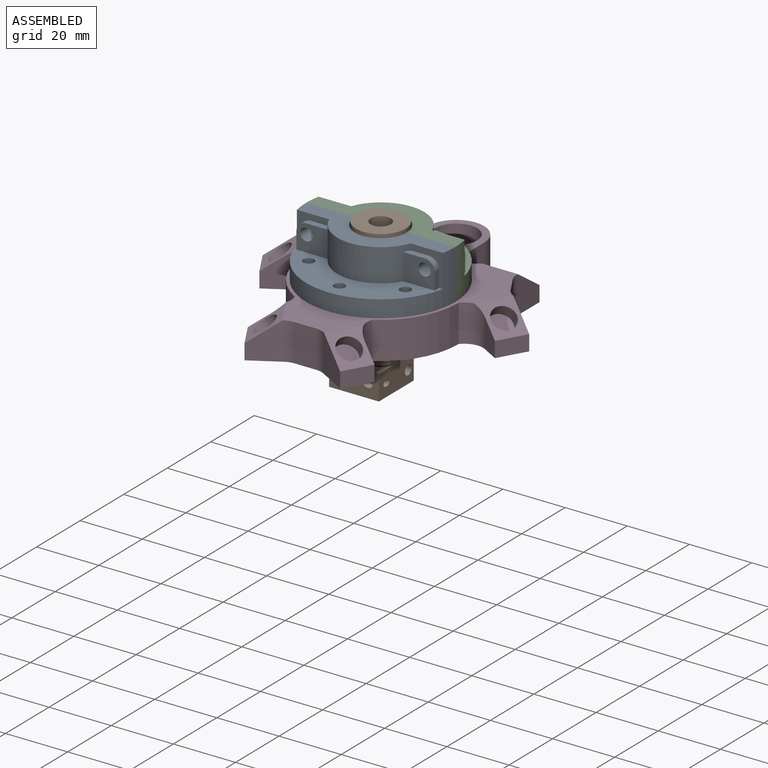
[diagram: assembled view]
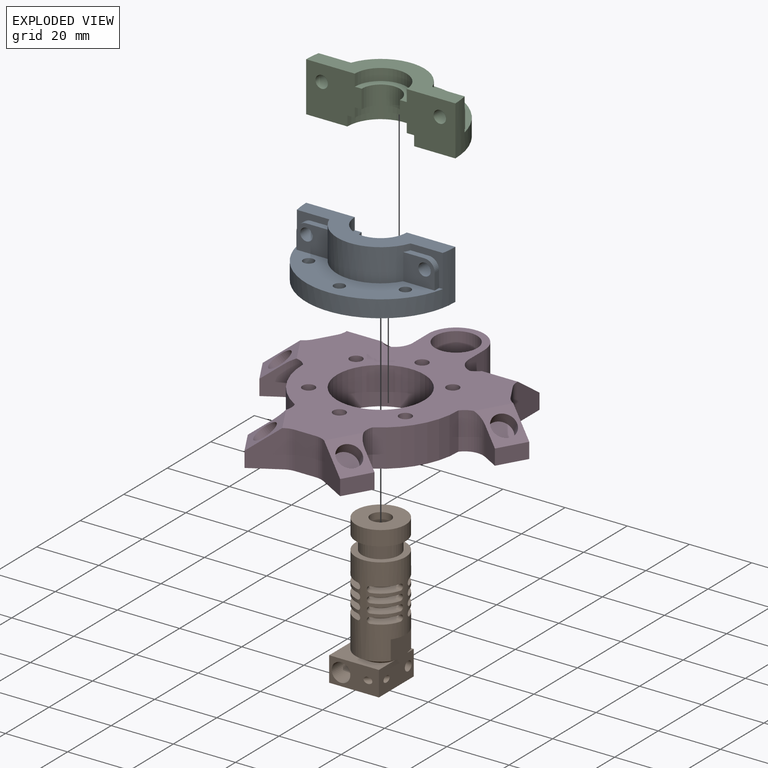
[diagram: exploded view]
GUIDED TOUR — MATED ASSEMBLY WITH SUBASSEMBLIES (Onshape document 575c5147e4b053149a4227c5, AutoMate assembly 575c5147e4b053149a4227c5_d70a87a9a5a8ee45e7b6e4a1_b2212cde1430702af11edaee_default)

This assembly has 5 component occurrences arranged in 4 top-level units: 3 individual components plus 1 subassembly (S0). The tour has two levels: first the top level, where each subassembly is treated as one rigid unit; then each subassembly is toured internally in its own section (nesting deeper than one subassembly level is flattened into its subassembly's section).

Components are labeled P0..P4 across the whole record; subassembly units are labeled S0..S0. A mate is a constraint between two units; its type names the relative motion it leaves free:
  FASTENED — locks the two components together rigidly (no relative motion).
Axis/direction vectors are unit vectors and 'through' points are millimeter coordinates, both in the assembly's world frame.

TOP-LEVEL MATES (between units; each subassembly's internal mates are listed in its own section)
  1. FASTENED "Fastened 1": P3 <-> P4, direction (0.000, 0.000, -1.000) through (-11.90, 14.18, 9.08) mm
  2. FASTENED "Fastened 4": S0 <-> P0, direction (0.000, 0.000, -1.000) through (-11.90, -4.82, 21.28) mm
  3. FASTENED "Fastened 2": P0 <-> P4, direction (0.000, 0.000, -1.000) through (-11.90, -23.82, 9.08) mm

TOP-LEVEL ASSEMBLY ORDER
  1. P0 — the base component [order heuristic]
  2. P3 — core [order heuristic]
  3. P4 [order verified]
  4. S0 — core [order heuristic]
Order-tag legend:
  [order verified] — this step's position reverses a verified removal order: the component was checked to insert without passing through the ones already placed.
  [order heuristic] — the first 3 components form the assembly's core: parts whose collision-free extraction could not be verified, listed in mate-graph order.

Of the 5 component occurrences, 1 carries the full construction recipe — the FeatureScript program that regenerates the part's solid from scratch; the rest are supplied as boundary geometry only. Each toured unit is shown spotlighted twice — assembled, then exploded with a leader line back to its socket (green = recipe-attached component, orange = geometry-only, blue = subassembly unit; the rest desaturated gray).
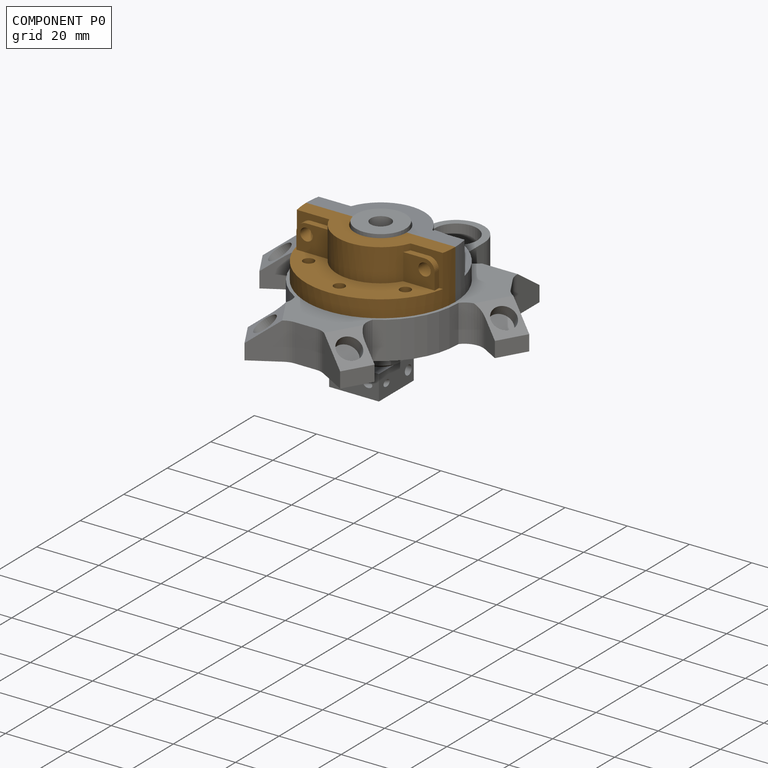
[diagram: component P0 — assembled]
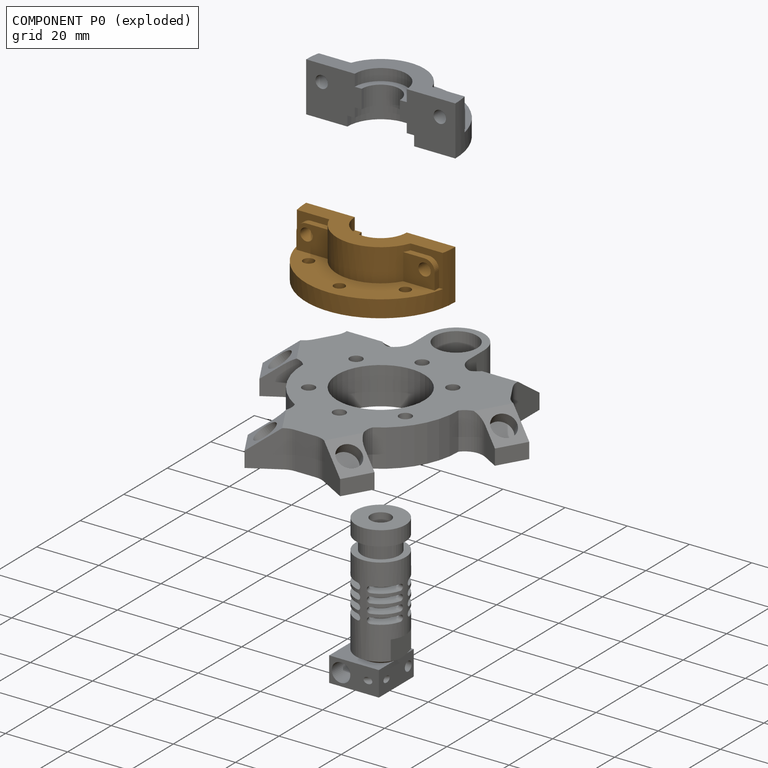
[diagram: component P0 — exploded]
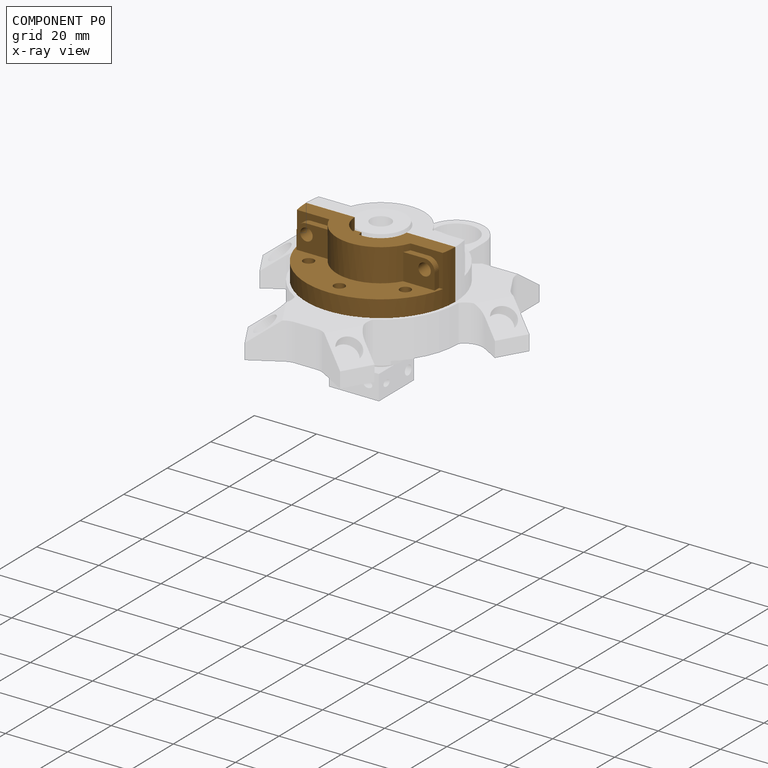
[diagram: component P0 — x-ray view]
COMPONENT P0 — geometry summary (no construction recipe available for this part):
  bounding box: 48.0 x 24.0 x 16.0 mm
  B-rep topology: 1 solid, 29 faces, 168 edges
  volume: 7576 mm^3 (41% of its bounding box)
  symmetry: mirror-symmetric across its x mid-plane
Held by: FASTENED mate "Fastened 4" to P1; FASTENED mate "Fastened 2" to P4.
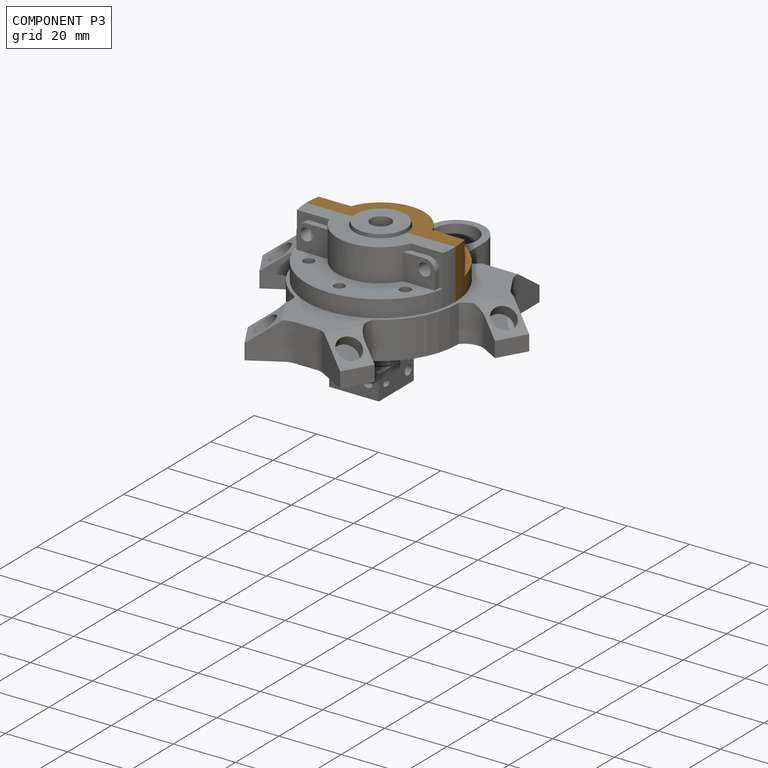
[diagram: component P3 — assembled]
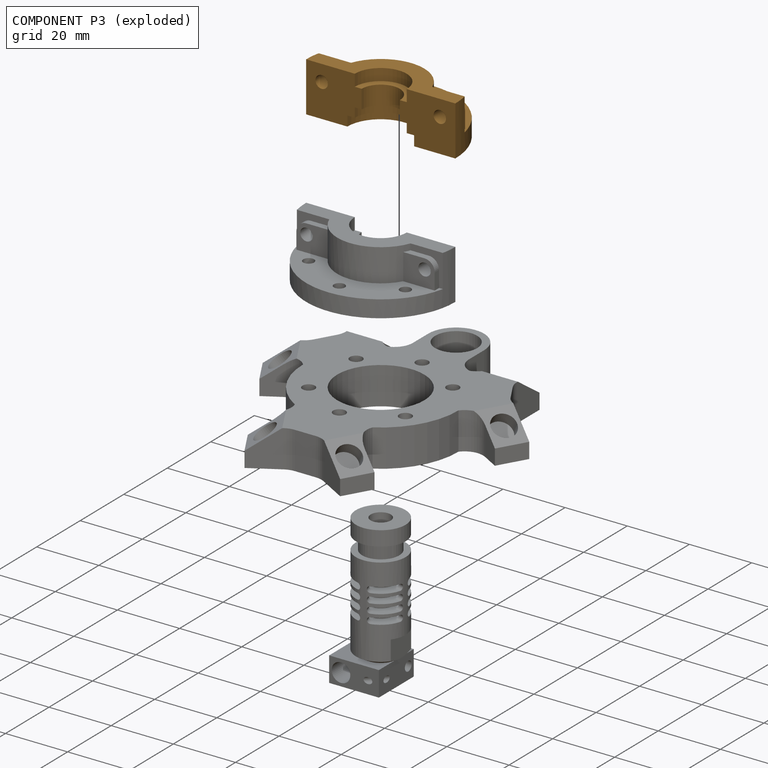
[diagram: component P3 — exploded]
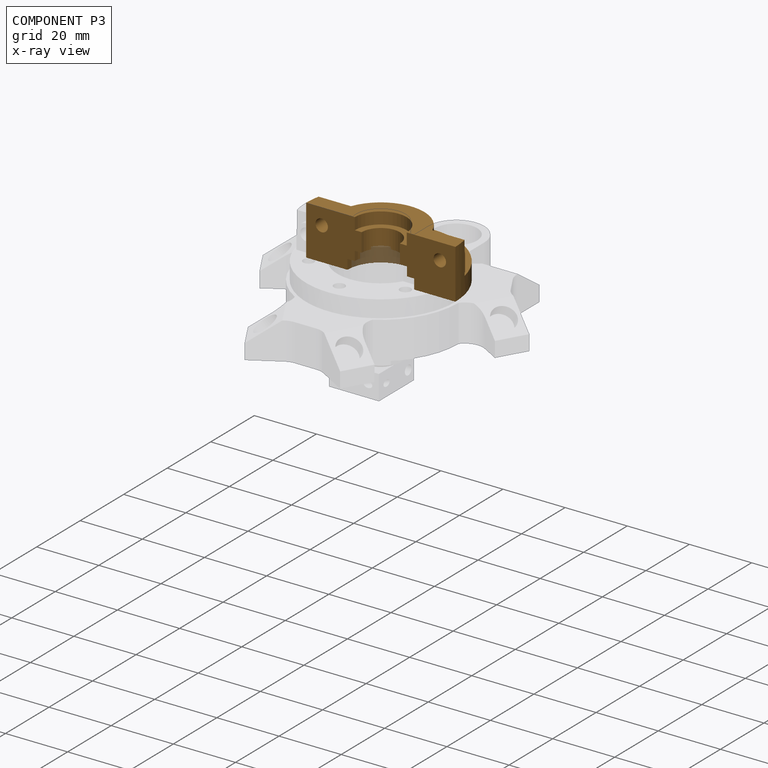
[diagram: component P3 — x-ray view]
COMPONENT P3 — geometry summary (no construction recipe available for this part):
  bounding box: 48.0 x 24.0 x 16.0 mm
  B-rep topology: 1 solid, 29 faces, 168 edges
  volume: 7576 mm^3 (41% of its bounding box)
  symmetry: mirror-symmetric across its x mid-plane
Held by: FASTENED mate "Fastened 1" to P4.
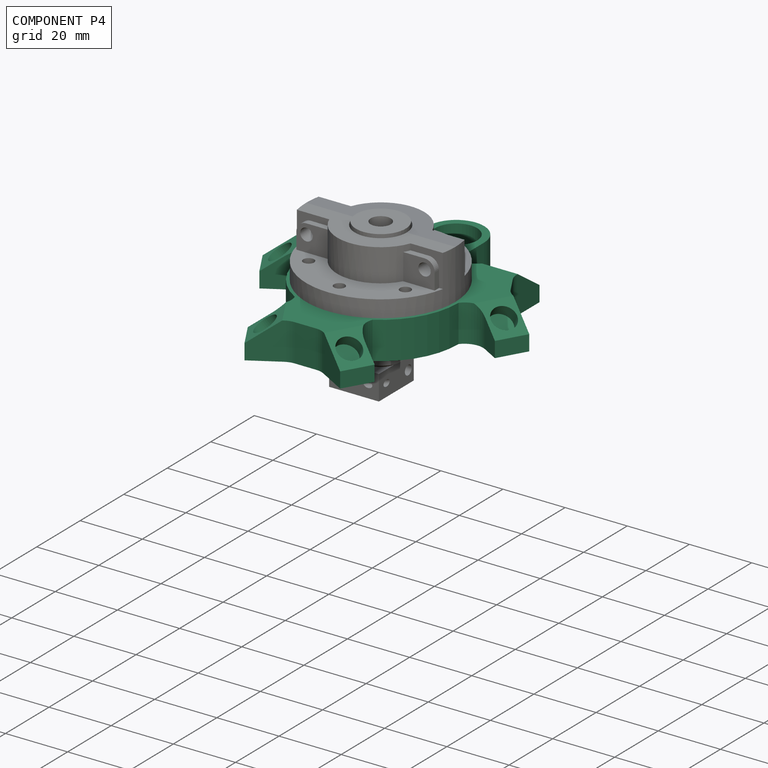
[diagram: component P4 — assembled]
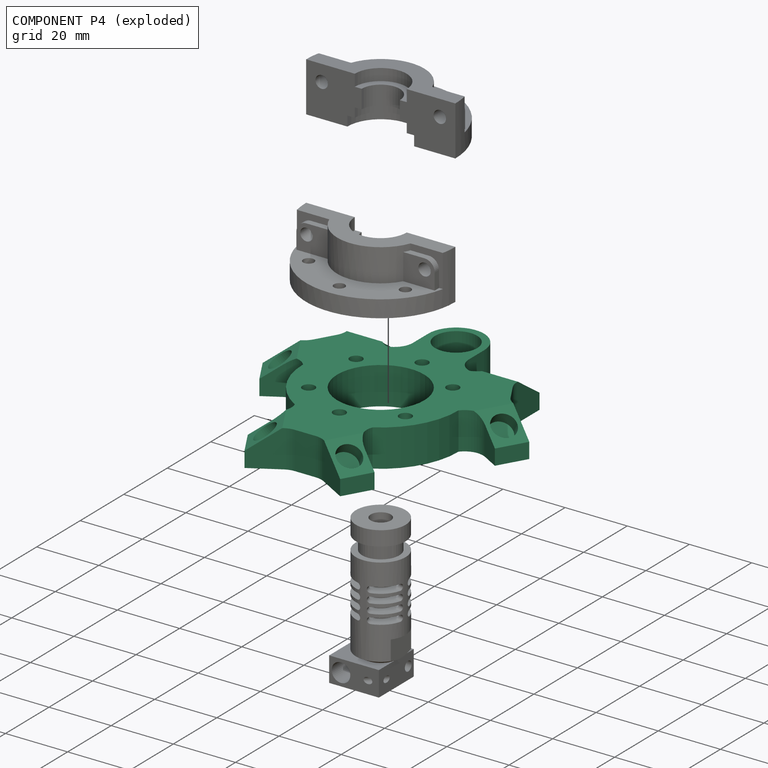
[diagram: component P4 — exploded]
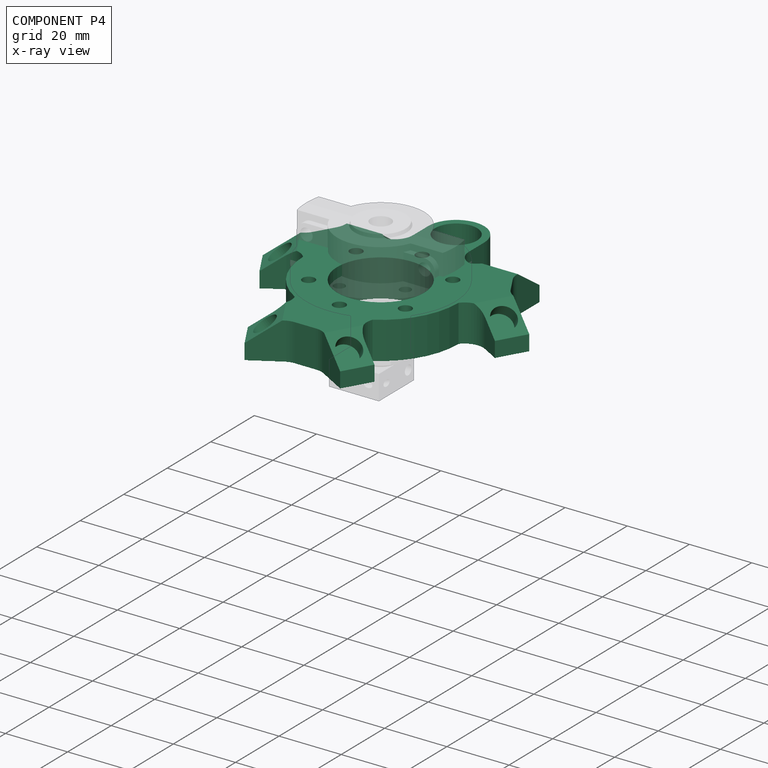
[diagram: component P4 — x-ray view]
COMPONENT P4 — recipe-attached (CADFS 00173867, mesh-verified: the recipe's output STEP matches this component's geometry to below the mesh-comparison resolution (tessellation chordal tolerance ~0.181 mm)).
Held by: FASTENED mate "Fastened 1" to P3; FASTENED mate "Fastened 2" to P0.
Construction recipe (FeatureScript — the CAD program that rebuilds this solid; sketch coordinates are in the units given by the * unit suffixes, e.g. mm):

FeatureScript 1511;
import(path : "onshape/std/geometry.fs", version : "1511.0");
import(path : "onshape/std/common.fs", version : "1511.0");
const mm = millimeter;
const VERTEX = EntityType.VERTEX;
const EDGE = EntityType.EDGE;
const FACE = EntityType.FACE;
const BODY = EntityType.BODY;
function v(x, y){return vector(x, y);}
function OD(order){return orderDisambiguation(order);}
function OSD(set){return originalSetDisambiguation(set);}
function TD(topology){return topologyDisambiguation(topology);}
function TDD(query){return trueDependencyDisambiguation(query);}
function sQuery(a, b, c) {return sketchEntityQuery(a, b, c);}

annotation { "Feature Type Name" : "Feature", "Feature Type Description" : "" }
export const myFeature = defineFeature(function(context is Context, id is Id, definition is map)
    precondition{}
    {
        {
            var Q0;
            Q0=qCreatedBy(makeId("Top.planeOp"),FACE);
            var sketch = newSketch(context, id + "F0", { "sketchPlane" : qUnion([Q0])});
            skCircle(sketch, "E0.cCircle", {"center": v(0, 0) * mm, "radius": 21.65 * mm, "construction": true});
            skLineSegment(sketch, "E0.0", {"start": v(-37.5, 21.65) * mm, "end": v(37.5, 21.65) * mm});
            skLineSegment(sketch, "E0.1", {"start": v(37.5, 21.65) * mm, "end": v(0, -43.3) * mm});
            skLineSegment(sketch, "E0.2", {"start": v(0, -43.3) * mm, "end": v(-37.5, 21.65) * mm});
            skPoint(sketch, "E0.0.midPoint", {"position": v(0, 21.65) * mm});
            skLineSegment(sketch, "E1", {"start": v(-5, -34.64) * mm, "end": v(5, -34.64) * mm});
            skLineSegment(sketch, "E2", {"start": v(27.5, 21.65) * mm, "end": v(32.5, 13) * mm});
            skLineSegment(sketch, "E3", {"start": v(-17.5, 33.65) * mm, "end": v(-17.5, 21.65) * mm});
            skLineSegment(sketch, "E4", {"start": v(17.5, 21.65) * mm, "end": v(17.5, 33.65) * mm});
            skLineSegment(sketch, "E5", {"start": v(27.5, 33.65) * mm, "end": v(27.5, 21.65) * mm});
            skLineSegment(sketch, "E6", {"start": v(-27.5, 21.65) * mm, "end": v(-27.5, 33.65) * mm});
            skLineSegment(sketch, "E7.MirrorCS", {"start": v(32.5, 13) * mm, "end": v(42.9, 7) * mm});
            skLineSegment(sketch, "E8.MirrorCS", {"start": v(37.9, -1.67) * mm, "end": v(27.5, 4.33) * mm});
            skLineSegment(sketch, "E9.MirrorCS", {"start": v(10, -25.98) * mm, "end": v(20.4, -31.98) * mm});
            skLineSegment(sketch, "E10.MirrorCS", {"start": v(15.4, -40.64) * mm, "end": v(5, -34.64) * mm});
            skLineSegment(sketch, "E11", {"start": v(-42.9, 7) * mm, "end": v(-32.5, 13) * mm});
            skLineSegment(sketch, "E12", {"start": v(-37.9, -1.67) * mm, "end": v(-27.5, 4.33) * mm});
            skLineSegment(sketch, "E13", {"start": v(-20.4, -31.98) * mm, "end": v(-10, -25.98) * mm});
            skLineSegment(sketch, "E14", {"start": v(-15.4, -40.64) * mm, "end": v(-5, -34.64) * mm});
            skCircle(sketch, "E15", {"center": v(0, 0) * mm, "radius": 14 * mm});
            skLineSegment(sketch, "E16", {"start": v(0, 21.65) * mm, "end": v(0, 34.65) * mm});
            skCircle(sketch, "E17", {"center": v(0, 34.65) * mm, "radius": 6.75 * mm});
            skArc(sketch, "E18", {"start": v(9, 34.65) * mm, "mid": v(0, 43.65) * mm, "end": v(-9, 34.65) * mm});
            skLineSegment(sketch, "E19", {"start": v(-9, 34.65) * mm, "end": v(-9, 21.65) * mm});
            skLineSegment(sketch, "E20", {"start": v(9, 34.65) * mm, "end": v(9, 21.65) * mm});
            skLineSegment(sketch, "E21", {"start": v(-32.5, 13) * mm, "end": v(-27.5, 21.65) * mm});
            skArc(sketch, "E22", {"start": v(-25, 0) * mm, "mid": v(-21.65, -12.5) * mm, "end": v(-12.5, -21.65) * mm});
            skArc(sketch, "E23.trimOffspring", {"start": v(12.5, -21.65) * mm, "mid": v(21.65, -12.5) * mm, "end": v(25, 0) * mm});
            skLineSegment(sketch, "E24", {"start": v(-37.9, -1.67) * mm, "end": v(-42.9, 7) * mm});
            skLineSegment(sketch, "E25", {"start": v(-27.5, 33.65) * mm, "end": v(-17.5, 33.65) * mm});
            skLineSegment(sketch, "E26", {"start": v(17.5, 33.65) * mm, "end": v(27.5, 33.65) * mm});
            skLineSegment(sketch, "E27", {"start": v(42.9, 7) * mm, "end": v(37.9, -1.67) * mm});
            skLineSegment(sketch, "E28", {"start": v(20.4, -31.98) * mm, "end": v(15.4, -40.64) * mm});
            skLineSegment(sketch, "E29", {"start": v(-15.4, -40.64) * mm, "end": v(-20.4, -31.98) * mm});
            skSolve(sketch);
        }
        {
            var Q0;
            {var subQ0=sQuery(id+"F0.wireOp",EDGE,"E3");Q0=makeQuery(id+"F0.imprint","IMPRINT",FACE,{"disambiguationData":[TD([[makeQuery(id+"F0.imprint","IMPRINT",EDGE,{"derivedFrom":subQ0}),-1.0]])]});}
            var Q1;
            Q1=makeQuery(id+"F0.imprint","IMPRINT",FACE,{"disambiguationData":[TD([[makeQuery(id+"F0.imprint","IMPRINT",EDGE,{"derivedFrom":sQuery(id+"F0.wireOp",EDGE,"E17")}),-1.0]])]});
            var Q2;
            {var subQ2=sQuery(id+"F0.wireOp",EDGE,"E4");Q2=makeQuery(id+"F0.imprint","IMPRINT",FACE,{"disambiguationData":[TD([[makeQuery(id+"F0.imprint","IMPRINT",EDGE,{"derivedFrom":subQ2}),-1.0]])]});}
            var Q3;
            {var subQ19=sQuery(id+"F0.wireOp",EDGE,"E1");Q3=makeQuery(id+"F0.imprint","IMPRINT",FACE,{"disambiguationData":[TD([[makeQuery(id+"F0.imprint","IMPRINT",EDGE,{"derivedFrom":subQ19}),1.0]])]});}
            var Q4;
            {var subQ0=sQuery(id+"F0.wireOp",EDGE,"E7.MirrorCS");Q4=makeQuery(id+"F0.imprint","IMPRINT",FACE,{"disambiguationData":[TD([[makeQuery(id+"F0.imprint","IMPRINT",EDGE,{"derivedFrom":subQ0}),-1.0]])]});}
            var Q5;
            {var subQ2=sQuery(id+"F0.wireOp",EDGE,"E9.MirrorCS");Q5=makeQuery(id+"F0.imprint","IMPRINT",FACE,{"disambiguationData":[TD([[makeQuery(id+"F0.imprint","IMPRINT",EDGE,{"derivedFrom":subQ2}),-1.0]])]});}
            var Q6;
            {var subQ0=sQuery(id+"F0.wireOp",EDGE,"E11");Q6=makeQuery(id+"F0.imprint","IMPRINT",FACE,{"disambiguationData":[TD([[makeQuery(id+"F0.imprint","IMPRINT",EDGE,{"derivedFrom":subQ0}),-1.0]])]});}
            var Q7;
            {var subQ0=sQuery(id+"F0.wireOp",EDGE,"E22");Q7=makeQuery(id+"F0.imprint","IMPRINT",FACE,{"disambiguationData":[TD([[makeQuery(id+"F0.imprint","IMPRINT",EDGE,{"derivedFrom":subQ0}),1.0]])]});}
            var Q8;
            {var subQ0=sQuery(id+"F0.wireOp",EDGE,"E23.trimOffspring");Q8=makeQuery(id+"F0.imprint","IMPRINT",FACE,{"disambiguationData":[TD([[makeQuery(id+"F0.imprint","IMPRINT",EDGE,{"derivedFrom":subQ0}),1.0]])]});}
            var Q9;
            {var subQ2=sQuery(id+"F0.wireOp",EDGE,"E13");Q9=makeQuery(id+"F0.imprint","IMPRINT",FACE,{"disambiguationData":[TD([[makeQuery(id+"F0.imprint","IMPRINT",EDGE,{"derivedFrom":subQ2}),-1.0]])]});}
            extrude(context, id + "F1", {"entities" : qUnion([Q0, Q1, Q2, Q3, Q4, Q5, Q6, Q7, Q8, Q9]), "depth" : 12 * mm});
        }
        {
            var Q0;
            Q0=makeQuery(id+"F1.opExtrude","CAP_EDGE",EDGE,{"disambiguationData":[OSD([sQuery(id+"F0.wireOp",EDGE,"E29")])],"isStart":false});
            var Q1;
            Q1=makeQuery(id+"F1.opExtrude","CAP_EDGE",EDGE,{"disambiguationData":[OSD([sQuery(id+"F0.wireOp",EDGE,"E24")])],"isStart":false});
            var Q2;
            Q2=makeQuery(id+"F1.opExtrude","CAP_EDGE",EDGE,{"disambiguationData":[OSD([sQuery(id+"F0.wireOp",EDGE,"E25")])],"isStart":false});
            var Q3;
            Q3=makeQuery(id+"F1.opExtrude","CAP_EDGE",EDGE,{"disambiguationData":[OSD([sQuery(id+"F0.wireOp",EDGE,"E26")])],"isStart":false});
            var Q4;
            Q4=makeQuery(id+"F1.opExtrude","CAP_EDGE",EDGE,{"disambiguationData":[OSD([sQuery(id+"F0.wireOp",EDGE,"E27")])],"isStart":false});
            var Q5;
            Q5=makeQuery(id+"F1.opExtrude","CAP_EDGE",EDGE,{"disambiguationData":[OSD([sQuery(id+"F0.wireOp",EDGE,"E28")])],"isStart":false});
            chamfer(context, id + "F2", {"entities" : qUnion([Q0, Q1, Q2, Q3, Q4, Q5]), "chamferType" : ChamferType.TWO_OFFSETS, "width1" : 7 * mm, "oppositeDirection" : false, "width2" : 10 * mm, "tangentPropagation" : true});
        }
        {
            var Q0;
            Q0=makeQuery(id+"F2.opChamfer","BLEND_FACE",FACE,{"disambiguationData":[OSD([sQuery(id+"F0.wireOp",EDGE,"E24")])]});
            var sketch = newSketch(context, id + "F3", { "sketchPlane" : qUnion([Q0])});
            skLineSegment(sketch, "E30", {"start": v(-31.04, 11.77) * mm, "end": v(-27.27, 6.41) * mm, "construction": true});
            skLineSegment(sketch, "E31", {"start": v(-33.15, 4.16) * mm, "end": v(-26.05, 9.16) * mm, "construction": true});
            skCircle(sketch, "E32", {"center": v(-28.16, 7.68) * mm, "radius": 3.8 * mm});
            skCircle(sketch, "E33", {"center": v(-2.24, -29.1) * mm, "radius": 3.8 * mm});
            skLineSegment(sketch, "E34", {"start": v(-28.16, 7.68) * mm, "end": v(-2.24, -29.1) * mm, "construction": true});
            skSolve(sketch);
        }
        {
            var Q0;
            Q0=makeQuery(id+"F3.imprint","IMPRINT",FACE,{"disambiguationData":[TD([[makeQuery(id+"F3.imprint","IMPRINT",EDGE,{"derivedFrom":sQuery(id+"F3.wireOp",EDGE,"E32")}),1.0]])]});
            var Q1;
            Q1=makeQuery(id+"F3.imprint","IMPRINT",FACE,{"disambiguationData":[TD([[makeQuery(id+"F3.imprint","IMPRINT",EDGE,{"derivedFrom":sQuery(id+"F3.wireOp",EDGE,"E33")}),1.0]])]});
            extrude(context, id + "F4", {"entities" : qUnion([Q0, Q1]), "operationType" : NewBodyOperationType.REMOVE, "oppositeDirection" : true, "depth" : 4 * mm});
        }
        {
            var Q0;
            Q0=makeQuery(id+"F2.opChamfer","BLEND_FACE",FACE,{"disambiguationData":[OSD([sQuery(id+"F0.wireOp",EDGE,"E26")])]});
            var sketch = newSketch(context, id + "F5", { "sketchPlane" : qUnion([Q0])});
            skLineSegment(sketch, "E35", {"start": v(27.5, 18.6) * mm, "end": v(22.5, 18.6) * mm});
            skLineSegment(sketch, "E36", {"start": v(22.5, 18.6) * mm, "end": v(-22.5, 18.6) * mm});
            skCircle(sketch, "E37", {"center": v(22.5, 18.6) * mm, "radius": 3.8 * mm});
            skCircle(sketch, "E38", {"center": v(-22.5, 18.6) * mm, "radius": 3.8 * mm});
            skSolve(sketch);
        }
        {
            var Q0;
            {var subQ0=sQuery(id+"F5.wireOp",EDGE,"E36");var subQ1=sQuery(id+"F5.wireOp",EDGE,"E35");var subQ2=makeQuery(id+"F5.imprint","INTERSECT",VERTEX,{"derivedFrom":[subQ1,subQ0]});Q0=makeQuery(id+"F5.imprint","IMPRINT",FACE,{"disambiguationData":[TD([[makeQuery(id+"F5.imprint","IMPRINT",EDGE,{"disambiguationData":[TD([[subQ2,1.0]])],"derivedFrom":subQ1}),1.0]])]});}
            var Q1;
            {var subQ0=sQuery(id+"F5.wireOp",EDGE,"E36");var subQ1=sQuery(id+"F5.wireOp",EDGE,"E35");var subQ2=makeQuery(id+"F5.imprint","INTERSECT",VERTEX,{"derivedFrom":[subQ1,subQ0]});Q1=makeQuery(id+"F5.imprint","IMPRINT",FACE,{"disambiguationData":[TD([[makeQuery(id+"F5.imprint","IMPRINT",EDGE,{"disambiguationData":[TD([[subQ2,1.0]])],"derivedFrom":subQ1}),-1.0]])]});}
            var Q2;
            Q2=makeQuery(id+"F5.imprint","IMPRINT",FACE,{"disambiguationData":[TD([[makeQuery(id+"F5.imprint","IMPRINT",EDGE,{"derivedFrom":sQuery(id+"F5.wireOp",EDGE,"E38")}),1.0]])]});
            extrude(context, id + "F6", {"entities" : qUnion([Q0, Q1, Q2]), "operationType" : NewBodyOperationType.REMOVE, "oppositeDirection" : true, "depth" : 4 * mm});
        }
        {
            var Q0;
            Q0=makeQuery(id+"F2.opChamfer","BLEND_FACE",FACE,{"disambiguationData":[OSD([sQuery(id+"F0.wireOp",EDGE,"E28")])]});
            var sketch = newSketch(context, id + "F7", { "sketchPlane" : qUnion([Q0])});
            skLineSegment(sketch, "E39", {"start": v(-0.64, -33.2) * mm, "end": v(2.24, -29.1) * mm});
            skLineSegment(sketch, "E40", {"start": v(2.24, -29.1) * mm, "end": v(28.16, 7.68) * mm});
            skCircle(sketch, "E41", {"center": v(2.24, -29.1) * mm, "radius": 3.8 * mm});
            skCircle(sketch, "E42", {"center": v(28.16, 7.68) * mm, "radius": 3.8 * mm});
            skSolve(sketch);
        }
        {
            var Q0;
            {var subQ0=sQuery(id+"F7.wireOp",EDGE,"E40");var subQ1=sQuery(id+"F7.wireOp",EDGE,"E39");var subQ2=makeQuery(id+"F7.imprint","INTERSECT",VERTEX,{"derivedFrom":[subQ1,subQ0]});Q0=makeQuery(id+"F7.imprint","IMPRINT",FACE,{"disambiguationData":[TD([[makeQuery(id+"F7.imprint","IMPRINT",EDGE,{"disambiguationData":[TD([[subQ2,1.0]])],"derivedFrom":subQ1}),-1.0]])]});}
            var Q1;
            {var subQ0=sQuery(id+"F7.wireOp",EDGE,"E40");var subQ1=sQuery(id+"F7.wireOp",EDGE,"E39");var subQ2=makeQuery(id+"F7.imprint","INTERSECT",VERTEX,{"derivedFrom":[subQ1,subQ0]});Q1=makeQuery(id+"F7.imprint","IMPRINT",FACE,{"disambiguationData":[TD([[makeQuery(id+"F7.imprint","IMPRINT",EDGE,{"disambiguationData":[TD([[subQ2,1.0]])],"derivedFrom":subQ1}),1.0]])]});}
            var Q2;
            Q2=makeQuery(id+"F7.imprint","IMPRINT",FACE,{"disambiguationData":[TD([[makeQuery(id+"F7.imprint","IMPRINT",EDGE,{"derivedFrom":sQuery(id+"F7.wireOp",EDGE,"E42")}),1.0]])]});
            extrude(context, id + "F8", {"entities" : qUnion([Q0, Q1, Q2]), "operationType" : NewBodyOperationType.REMOVE, "oppositeDirection" : true, "depth" : 4 * mm});
        }
        {
            var Q0;
            Q0=makeQuery(id+"F1.opExtrude","CAP_FACE",FACE,{"disambiguationData":[OSD([sQuery(id+"F0.wireOp",EDGE,"E0.0"),sQuery(id+"F0.wireOp",EDGE,"E0.1"),sQuery(id+"F0.wireOp",EDGE,"E0.2"),sQuery(id+"F0.wireOp",EDGE,"E1"),sQuery(id+"F0.wireOp",EDGE,"E2"),sQuery(id+"F0.wireOp",EDGE,"4yodVnod-HSkP-hWuY-k5Q9-o2vyupEBQnbU"),sQuery(id+"F0.wireOp",EDGE,"E3"),sQuery(id+"F0.wireOp",EDGE,"DrTCFwwd-uJIO-l7Mc-FUeM-3Znudd7SfULi"),sQuery(id+"F0.wireOp",EDGE,"XJd8ivhQ-aFTZ-Wpu1-i3gc-w7BEuMXScrIg"),sQuery(id+"F0.wireOp",EDGE,"NkbWxuBs-xui2-Ugcs-E7hZ-WqPHm2JgyJjQ"),sQuery(id+"F0.wireOp",EDGE,"wxoEi51N-vPjQ-D9ZL-bqxc-PpyKxLyGMqhi"),sQuery(id+"F0.wireOp",EDGE,"FRBufPZZ-bnoo-GLsI-h1R0-5fheKrHQj5qL"),sQuery(id+"F0.wireOp",EDGE,"weCBSG1R-y6NJ-jWrY-gTpv-LjhZX11R3FDU"),sQuery(id+"F0.wireOp",EDGE,"E4"),sQuery(id+"F0.wireOp",EDGE,"RQwynOZ9-mmGK-Vg8d-z1nS-SzItJ1ZbRz1E"),sQuery(id+"F0.wireOp",EDGE,"E5"),sQuery(id+"F0.wireOp",EDGE,"E6"),sQuery(id+"F0.wireOp",EDGE,"1b8d74d8-3f0b-407f-a6e8-cb5342e333a70.MirrorCS"),sQuery(id+"F0.wireOp",EDGE,"af4517e1-7c06-4913-bf30-ce8e1029422a0.MirrorCS"),sQuery(id+"F0.wireOp",EDGE,"E7.MirrorCS"),sQuery(id+"F0.wireOp",EDGE,"af4517e1-7c06-4913-bf30-ce8e1029422a2.MirrorCS"),sQuery(id+"F0.wireOp",EDGE,"af4517e1-7c06-4913-bf30-ce8e1029422a3.MirrorCS"),sQuery(id+"F0.wireOp",EDGE,"E8.MirrorCS"),sQuery(id+"F0.wireOp",EDGE,"af4517e1-7c06-4913-bf30-ce8e1029422a5.MirrorCS"),sQuery(id+"F0.wireOp",EDGE,"af4517e1-7c06-4913-bf30-ce8e1029422a6.MirrorCS"),sQuery(id+"F0.wireOp",EDGE,"af4517e1-7c06-4913-bf30-ce8e1029422a7.MirrorCS"),sQuery(id+"F0.wireOp",EDGE,"E9.MirrorCS"),sQuery(id+"F0.wireOp",EDGE,"af4517e1-7c06-4913-bf30-ce8e1029422a9.MirrorCS"),sQuery(id+"F0.wireOp",EDGE,"E70.MirrorCS"),sQuery(id+"F0.wireOp",EDGE,"E10.MirrorCS"),sQuery(id+"F0.wireOp",EDGE,"E11"),sQuery(id+"F0.wireOp",EDGE,"E12"),sQuery(id+"F0.wireOp",EDGE,"918e0306-1a75-4efb-b666-a2afadbdaebc.MirrorCS"),sQuery(id+"F0.wireOp",EDGE,"8d927deb-9123-4b07-8d17-edf002e506ed"),sQuery(id+"F0.wireOp",EDGE,"8b6f3380-b972-40d3-8b0b-d0e01004c041"),sQuery(id+"F0.wireOp",EDGE,"f2d8aa4d-a053-4d04-b9da-e15e9ac5b317.MirrorCS"),sQuery(id+"F0.wireOp",EDGE,"055ed72d-0a9a-4cf6-aa84-763c8b792dbf"),sQuery(id+"F0.wireOp",EDGE,"2b70aff8-f68a-4378-b54f-3f54c54aa466"),sQuery(id+"F0.wireOp",EDGE,"1f120e8b-898b-4de3-9566-7b0c2c69de78.MirrorCS"),sQuery(id+"F0.wireOp",EDGE,"E13"),sQuery(id+"F0.wireOp",EDGE,"E14"),sQuery(id+"F0.wireOp",EDGE,"E15"),sQuery(id+"F0.wireOp",EDGE,"E17"),sQuery(id+"F0.wireOp",EDGE,"E18"),sQuery(id+"F0.wireOp",EDGE,"E19"),sQuery(id+"F0.wireOp",EDGE,"E20"),sQuery(id+"F0.wireOp",EDGE,"E21")])],"isStart":false});
            var sketch = newSketch(context, id + "F9", { "sketchPlane" : qUnion([Q0])});
            skLineSegment(sketch, "E43", {"start": v(0, 0) * mm, "end": v(0, -19) * mm, "construction": true});
            skLineSegment(sketch, "E44", {"start": v(0, 0) * mm, "end": v(0, 19) * mm, "construction": true});
            skLineSegment(sketch, "E45", {"start": v(0, 0) * mm, "end": v(-15.56, 10.9) * mm, "construction": true});
            skLineSegment(sketch, "E46", {"start": v(0, 0) * mm, "end": v(15.56, 10.9) * mm, "construction": true});
            skLineSegment(sketch, "E47", {"start": v(0, 0) * mm, "end": v(-15.56, -10.9) * mm, "construction": true});
            skLineSegment(sketch, "E48", {"start": v(0, 0) * mm, "end": v(15.56, -10.9) * mm, "construction": true});
            skCircle(sketch, "E49", {"center": v(-15.56, 10.9) * mm, "radius": 2 * mm});
            skCircle(sketch, "E50", {"center": v(0, 19) * mm, "radius": 2 * mm});
            skCircle(sketch, "E51", {"center": v(-15.56, -10.9) * mm, "radius": 2 * mm});
            skCircle(sketch, "E52", {"center": v(0, -19) * mm, "radius": 2 * mm});
            skCircle(sketch, "E53", {"center": v(15.56, -10.9) * mm, "radius": 2 * mm});
            skCircle(sketch, "E54", {"center": v(15.56, 10.9) * mm, "radius": 2 * mm});
            skSolve(sketch);
        }
        {
            var Q0;
            Q0=qSketchRegion(id+"F9",true);
            extrude(context, id + "F10", {"entities" : qUnion([Q0]), "operationType" : NewBodyOperationType.REMOVE, "oppositeDirection" : true, "depth" : 25 * mm});
        }
        {
            var Q0;
            Q0=makeQuery(id+"F1.opExtrude","SWEPT_EDGE",EDGE,{"disambiguationData":[OSD([sQuery(id+"F0.wireOp",EDGE,"E0.1"),sQuery(id+"F0.wireOp",EDGE,"E9.MirrorCS")])]});
            var Q1;
            Q1=makeQuery(id+"F1.opExtrude","SWEPT_EDGE",EDGE,{"disambiguationData":[OSD([sQuery(id+"F0.wireOp",EDGE,"E0.1"),sQuery(id+"F0.wireOp",EDGE,"E8.MirrorCS")])]});
            var Q2;
            Q2=makeQuery(id+"F1.opExtrude","SWEPT_EDGE",EDGE,{"disambiguationData":[OSD([sQuery(id+"F0.wireOp",EDGE,"E0.1"),sQuery(id+"F0.wireOp",EDGE,"E1"),sQuery(id+"F0.wireOp",EDGE,"E10.MirrorCS")])]});
            var Q3;
            Q3=makeQuery(id+"F1.opExtrude","SWEPT_EDGE",EDGE,{"disambiguationData":[OSD([sQuery(id+"F0.wireOp",EDGE,"E0.2"),sQuery(id+"F0.wireOp",EDGE,"E1"),sQuery(id+"F0.wireOp",EDGE,"E14")])]});
            var Q4;
            Q4=makeQuery(id+"F1.opExtrude","SWEPT_EDGE",EDGE,{"disambiguationData":[OSD([sQuery(id+"F0.wireOp",EDGE,"E0.2"),sQuery(id+"F0.wireOp",EDGE,"E12")])]});
            var Q5;
            Q5=makeQuery(id+"F1.opExtrude","SWEPT_EDGE",EDGE,{"disambiguationData":[OSD([sQuery(id+"F0.wireOp",EDGE,"E0.0"),sQuery(id+"F0.wireOp",EDGE,"E4")])]});
            var Q6;
            Q6=makeQuery(id+"F1.opExtrude","SWEPT_EDGE",EDGE,{"disambiguationData":[OSD([sQuery(id+"F0.wireOp",EDGE,"E0.2"),sQuery(id+"F0.wireOp",EDGE,"E13")])]});
            var Q7;
            Q7=makeQuery(id+"F1.opExtrude","SWEPT_EDGE",EDGE,{"disambiguationData":[OSD([sQuery(id+"F0.wireOp",EDGE,"E0.0"),sQuery(id+"F0.wireOp",EDGE,"E2"),sQuery(id+"F0.wireOp",EDGE,"E5")])]});
            var Q8;
            Q8=makeQuery(id+"F1.opExtrude","SWEPT_EDGE",EDGE,{"disambiguationData":[OSD([sQuery(id+"F0.wireOp",EDGE,"E0.1"),sQuery(id+"F0.wireOp",EDGE,"E2"),sQuery(id+"F0.wireOp",EDGE,"E7.MirrorCS")])]});
            var Q9;
            Q9=makeQuery(id+"F1.opExtrude","SWEPT_EDGE",EDGE,{"disambiguationData":[OSD([sQuery(id+"F0.wireOp",EDGE,"E0.0"),sQuery(id+"F0.wireOp",EDGE,"E3")])]});
            var Q10;
            Q10=makeQuery(id+"F1.opExtrude","SWEPT_EDGE",EDGE,{"disambiguationData":[OSD([sQuery(id+"F0.wireOp",EDGE,"E0.2"),sQuery(id+"F0.wireOp",EDGE,"E11"),sQuery(id+"F0.wireOp",EDGE,"E21")])]});
            var Q11;
            Q11=makeQuery(id+"F1.opExtrude","SWEPT_EDGE",EDGE,{"disambiguationData":[OSD([sQuery(id+"F0.wireOp",EDGE,"E0.0"),sQuery(id+"F0.wireOp",EDGE,"E6"),sQuery(id+"F0.wireOp",EDGE,"E21")])]});
            var Q12;
            Q12=makeQuery(id+"F1.opExtrude","SWEPT_EDGE",EDGE,{"disambiguationData":[OSD([sQuery(id+"F0.wireOp",EDGE,"E0.0"),sQuery(id+"F0.wireOp",EDGE,"E20")])]});
            var Q13;
            Q13=makeQuery(id+"F1.opExtrude","SWEPT_EDGE",EDGE,{"disambiguationData":[OSD([sQuery(id+"F0.wireOp",EDGE,"E0.0"),sQuery(id+"F0.wireOp",EDGE,"E19")])]});
            fillet(context, id + "F11", {"entities" : qUnion([Q0, Q1, Q2, Q3, Q4, Q5, Q6, Q7, Q8, Q9, Q10, Q11, Q12, Q13]), "radius" : 6 * mm, "tangentPropagation" : true, "allowEdgeOverflow" : false});
        }
    });
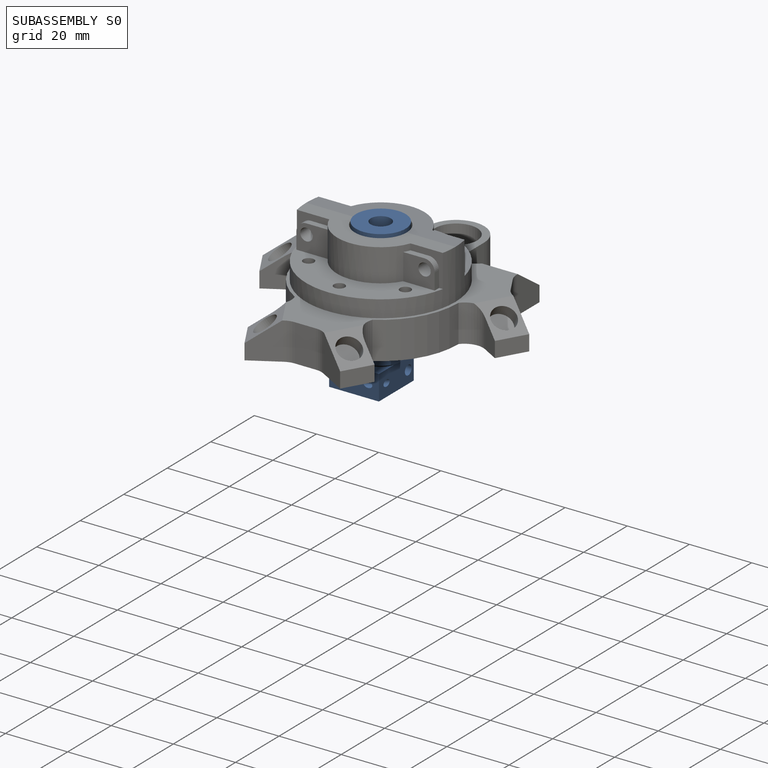
[diagram: subassembly S0 — assembled]
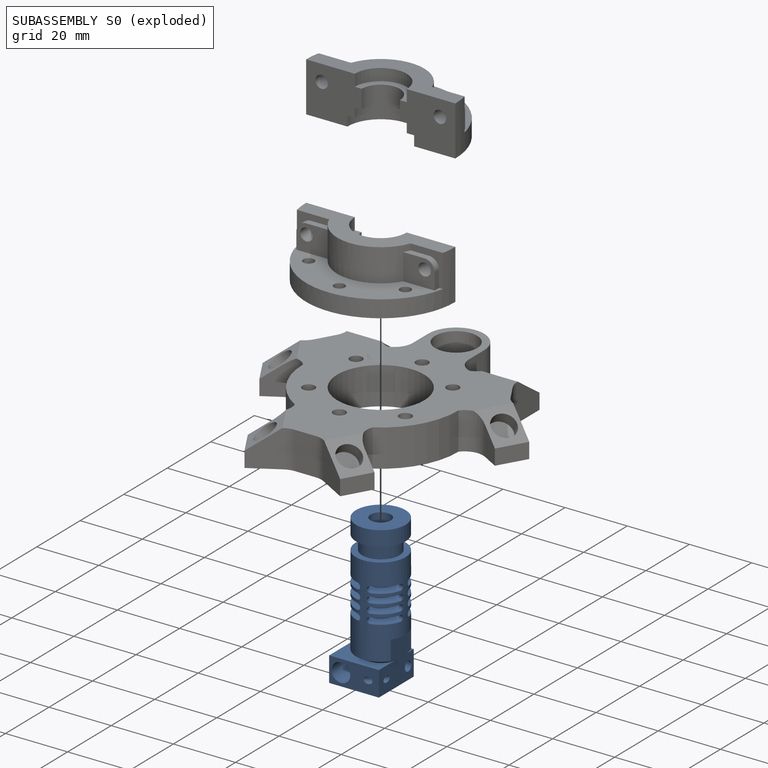
[diagram: subassembly S0 — exploded]
SUBASSEMBLY S0 — 2 components (P1, P2), of which 0 recipe-attached; toured below.
Held by: FASTENED mate "Fastened 4" to P0.
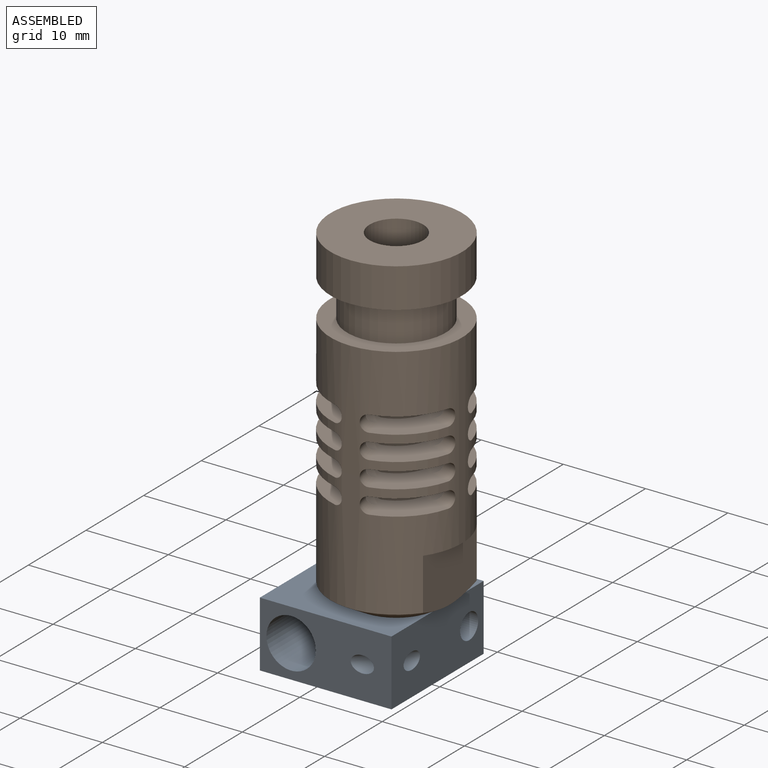
[diagram: subassembly S0 — assembled view]
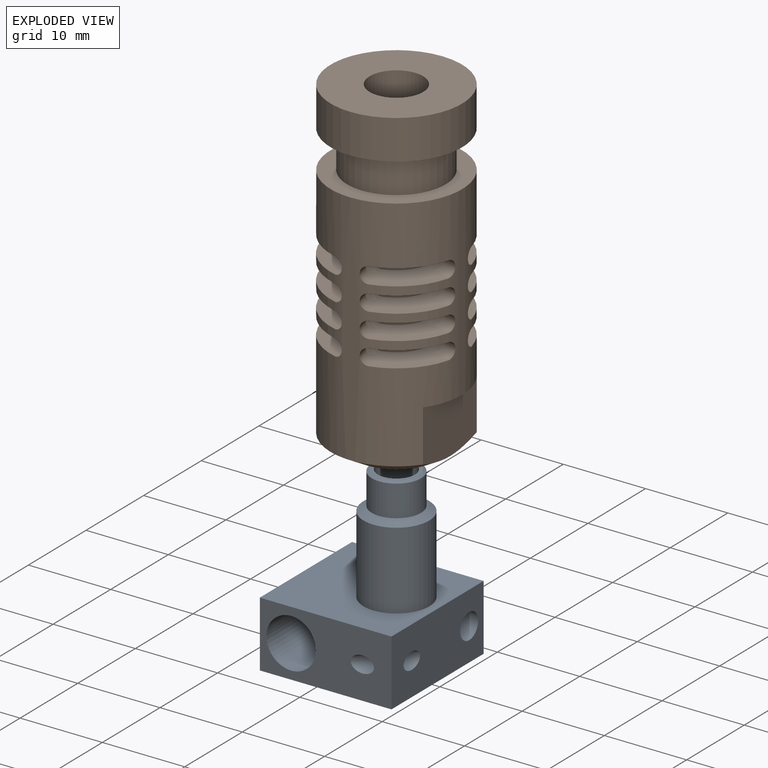
[diagram: subassembly S0 — exploded view]
SUBASSEMBLY S0 TOUR — 2 components, shown here in isolation at its own camera.

INTERNAL MATES
  1. FASTENED "Fastened 3": P1 <-> P2, direction (0.000, 0.000, -1.000) through (-11.90, -4.82, -13.92) mm

ASSEMBLY ORDER (within the subassembly)
  1. P1 — the base component [order heuristic]
  2. P2 [order heuristic]
Order-tag legend:
  [order heuristic] — this assembly is geometrically interlocked (no collision-free removal order exists), so components are listed in mate-graph order; insertion feasibility is not verified.
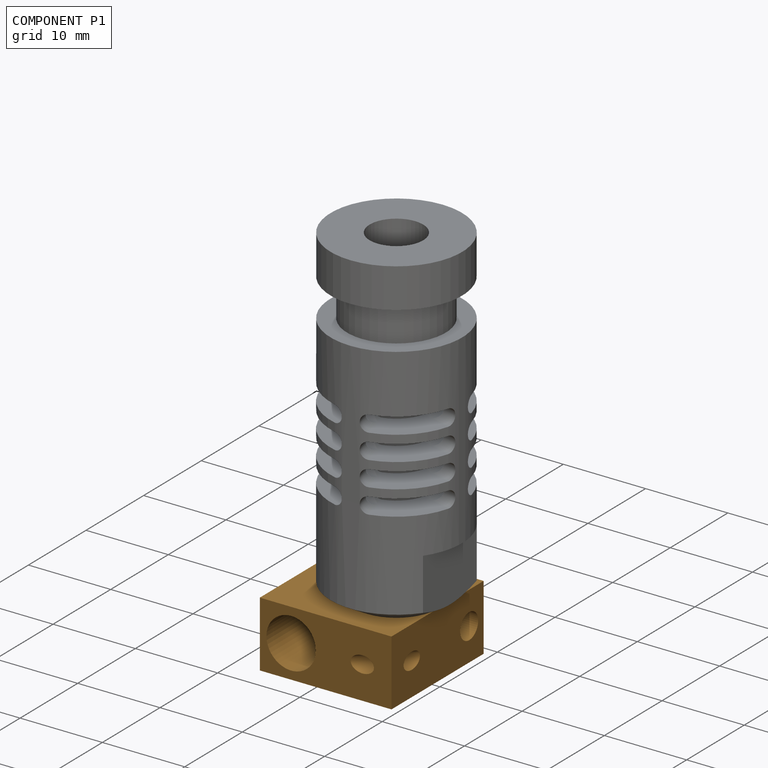
[diagram: component P1 — assembled]
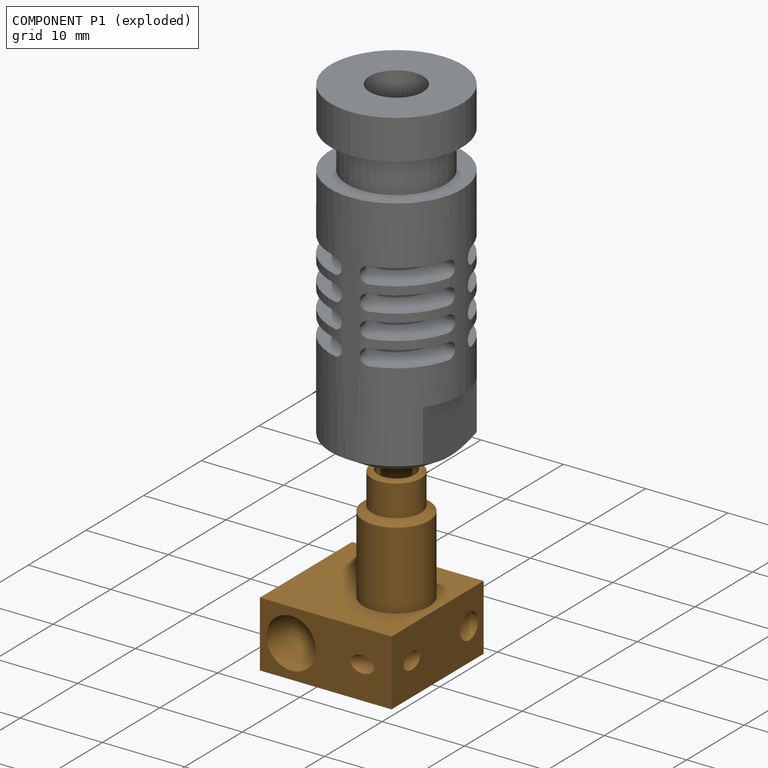
[diagram: component P1 — exploded]
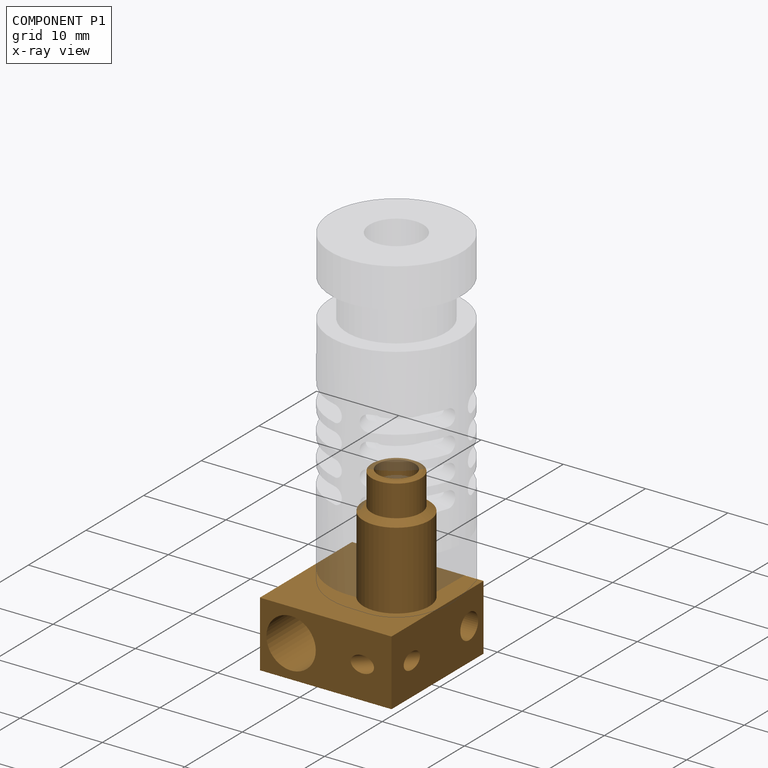
[diagram: component P1 — x-ray view]
COMPONENT P1 — geometry summary (no construction recipe available for this part):
  bounding box: 24.8 x 17.8 x 17.8 mm
  B-rep topology: 1 solid, 21 faces, 100 edges
  volume: 1842 mm^3 (23% of its bounding box)
Held by: FASTENED mate "Fastened 3" to P2.
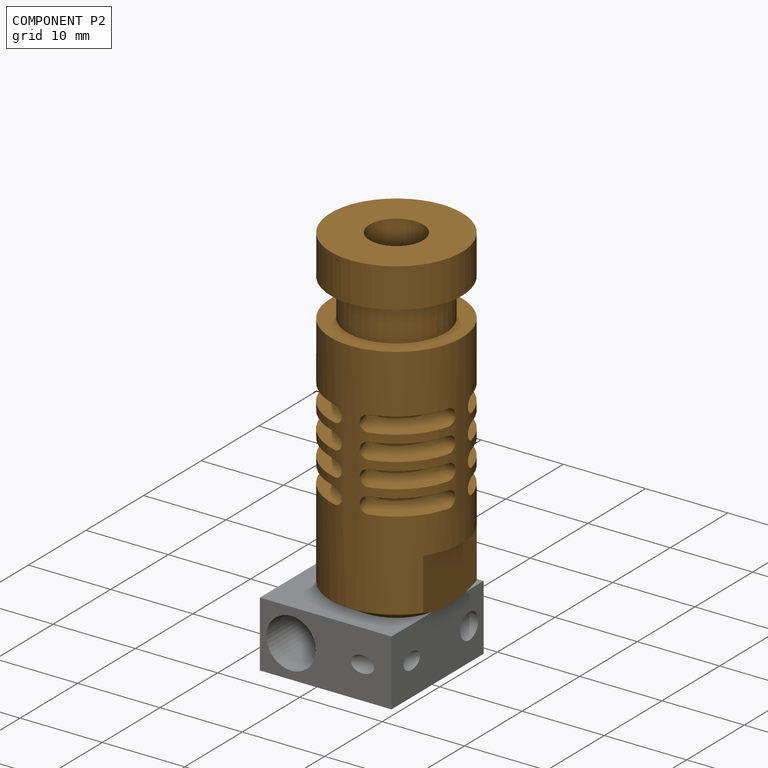
[diagram: component P2 — assembled]
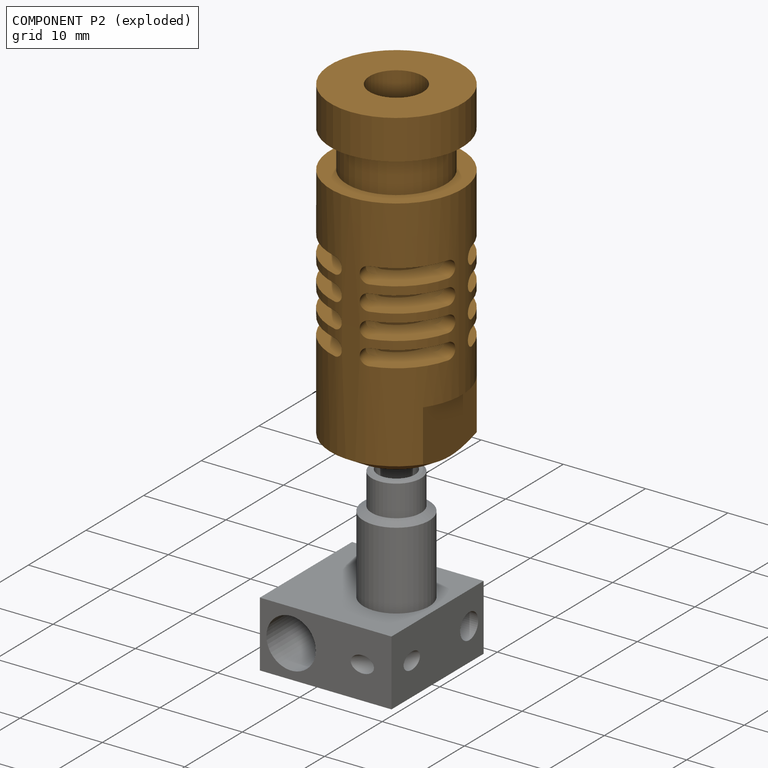
[diagram: component P2 — exploded]
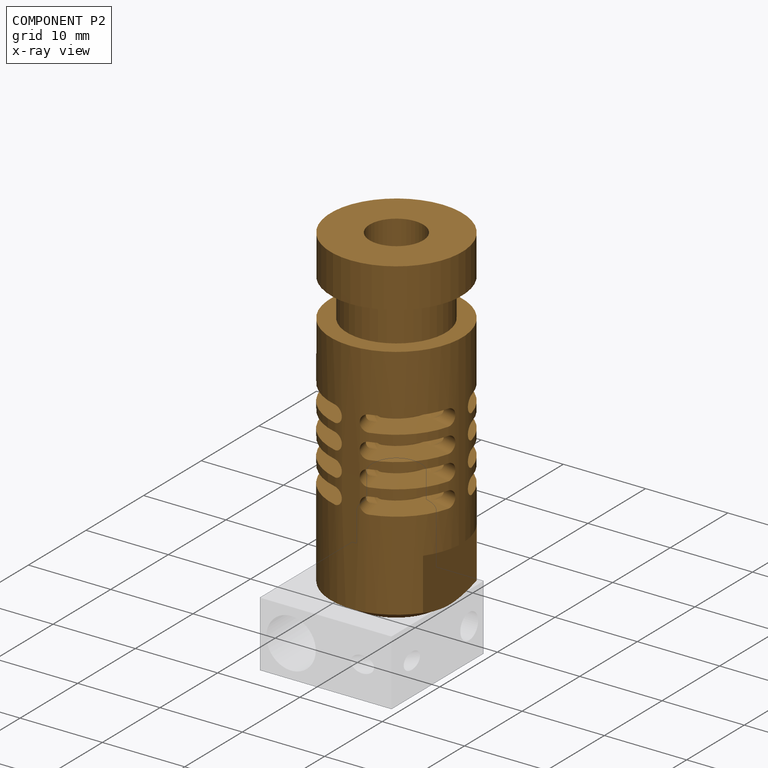
[diagram: component P2 — x-ray view]
COMPONENT P2 — geometry summary (no construction recipe available for this part):
  bounding box: 40.0 x 16.0 x 16.0 mm
  B-rep topology: 1 solid, 207 faces, 1118 edges
  volume: 5011 mm^3 (49% of its bounding box)
  symmetry: 2-fold rotationally symmetric about the z axis; mirror-symmetric across its x mid-plane, y mid-plane
Held by: FASTENED mate "Fastened 3" to P1.
PROVENANCE & LICENSES
Assembly (occurrences, transforms, mates, per-part STEP geometry): AutoMate dataset, Zenodo record 7776208, CC0.
Construction recipes: CADFS (HuggingFace VladPyatov/CADFS, CC-BY-4.0, layered over the ABC dataset), FeatureScript reconstruction programs keyed by ABC model id.
Join: ABC meta listings map ABC model id -> Onshape documentId; within a shared document, parts are matched by geometric signature (bounding-box dims + volume at 0.1% relative tolerance, exact B-rep face/solid counts).
Verification: 1 of this assembly's 5 components carries a recipe attachment, and every attachment is mesh-verified: the CADFS STEP and the AutoMate member STEP were compared as meshes in their shared local frame (symmetric sampled-point-to-mesh distance); worst across the 1 attachment: below the mesh-comparison resolution (tessellation chordal tolerance ~0.181 mm) on a 121 mm part.
Renders: orthographic iso camera (az 35 / el 25); the floor grid conveys scale (grid pitch printed in each image; no ruler). In the exploded view each component is displaced by its stored offset vector: the offsets alone carry the explosion direction (mate normal/axis signs are not orientation cues and do not encode it), and separation distances are assigned per mate-chain, not proportionally to assembly-order depth.
